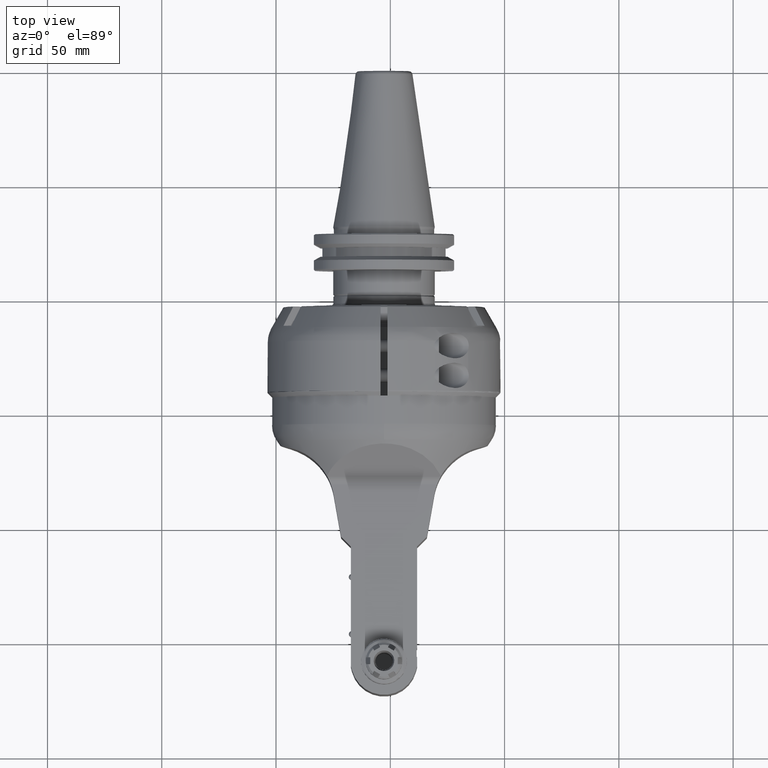
[diagram: clean part render]
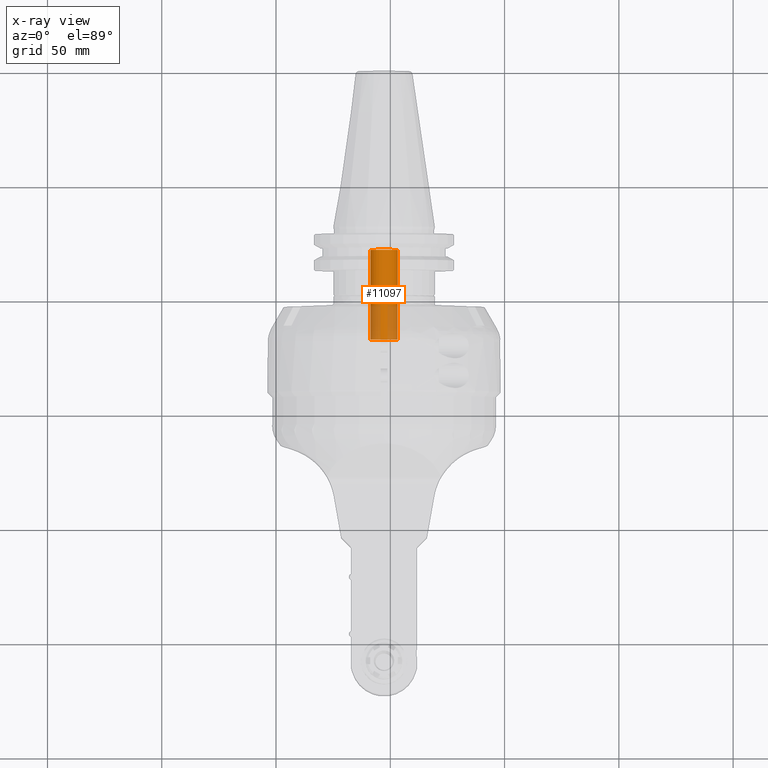
[diagram: x-ray — body ghosted, one internal face saturated and labeled with its STEP entity id]
A machine part, top view, then the same camera in x-ray: the body is ghosted and one INTERNAL B-rep face — a face not visible from any outside direction — is saturated and labeled: STEP entity #11097.
In plain terms, the highlighted cylindrical surface (bore or boss wall) has radius 6 mm, axis along (0, 1, 0).
Its self-contained STEP definition (entity closure, byte-faithful):
#899=LINE('',#21390,#1671);
#1671=VECTOR('',#14951,6.);
#2069=CYLINDRICAL_SURFACE('',#12259,6.);
#2992=FACE_OUTER_BOUND('',#3728,.T.);
#3728=EDGE_LOOP('',(#9493,#9494,#9495,#9496,#9497));
#4434=CIRCLE('',#12255,6.);
#4436=CIRCLE('',#12257,6.);
#4437=CIRCLE('',#12260,6.);
#5338=VERTEX_POINT('',#21379);
#5339=VERTEX_POINT('',#21380);
#5341=VERTEX_POINT('',#21388);
#6788=EDGE_CURVE('',#5338,#5339,#4434,.T.);
#6791=EDGE_CURVE('',#5339,#5338,#4436,.T.);
#6792=EDGE_CURVE('',#5341,#5341,#4437,.T.);
#6793=EDGE_CURVE('',#5341,#5338,#899,.T.);
#9493=ORIENTED_EDGE('',*,*,#6792,.T.);
#9494=ORIENTED_EDGE('',*,*,#6793,.T.);
#9495=ORIENTED_EDGE('',*,*,#6791,.F.);
#9496=ORIENTED_EDGE('',*,*,#6788,.F.);
#9497=ORIENTED_EDGE('',*,*,#6793,.F.);
#11097=ADVANCED_FACE('',(#2992),#2069,.T.);
#12255=AXIS2_PLACEMENT_3D('',#21381,#14938,#14939);
#12257=AXIS2_PLACEMENT_3D('',#21385,#14943,#14944);
#12259=AXIS2_PLACEMENT_3D('',#21387,#14947,#14948);
#12260=AXIS2_PLACEMENT_3D('',#21389,#14949,#14950);
#14938=DIRECTION('center_axis',(0.,-1.,0.));
#14939=DIRECTION('ref_axis',(1.,0.,0.));
#14943=DIRECTION('center_axis',(0.,-1.,0.));
#14944=DIRECTION('ref_axis',(1.,0.,0.));
#14947=DIRECTION('center_axis',(0.,1.,0.));
#14948=DIRECTION('ref_axis',(1.,0.,0.));
#14949=DIRECTION('center_axis',(0.,-1.,0.));
#14950=DIRECTION('ref_axis',(-1.,0.,0.));
#14951=DIRECTION('',(0.,-1.,0.));
#21379=CARTESIAN_POINT('',(-6.,25.375,0.));
#21380=CARTESIAN_POINT('',(7.34788079488596E-16,25.3749999999985,6.0000000000015));
#21381=CARTESIAN_POINT('Origin',(0.,25.375,0.));
#21385=CARTESIAN_POINT('Origin',(0.,25.375,0.));
#21387=CARTESIAN_POINT('Origin',(0.,21.9,0.));
#21388=CARTESIAN_POINT('',(-6.,64.5,7.34788079488412E-16));
#21389=CARTESIAN_POINT('Origin',(0.,64.5,0.));
#21390=CARTESIAN_POINT('',(-6.,21.9,7.34788079488412E-16));